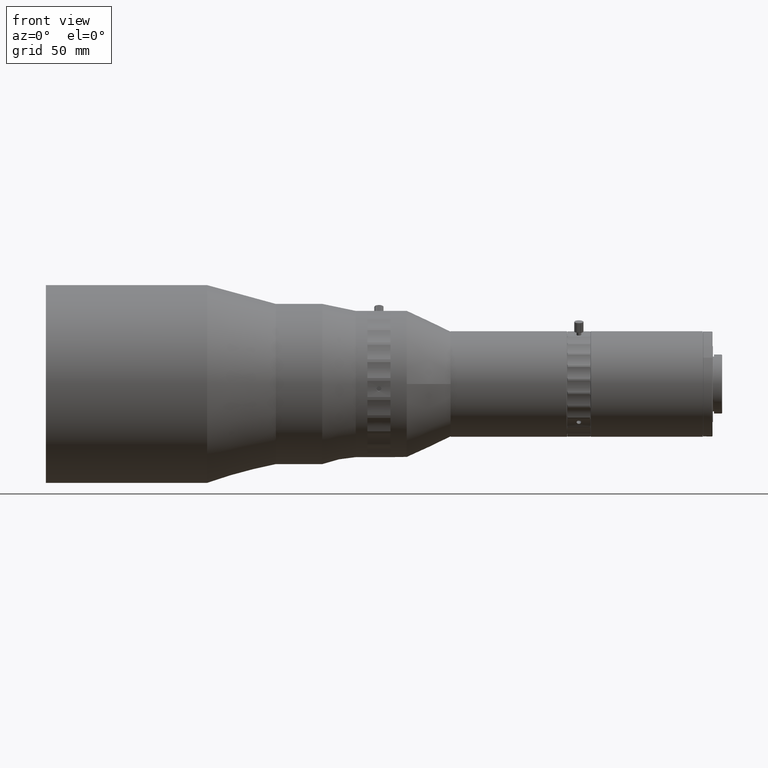
[diagram: clean part render]
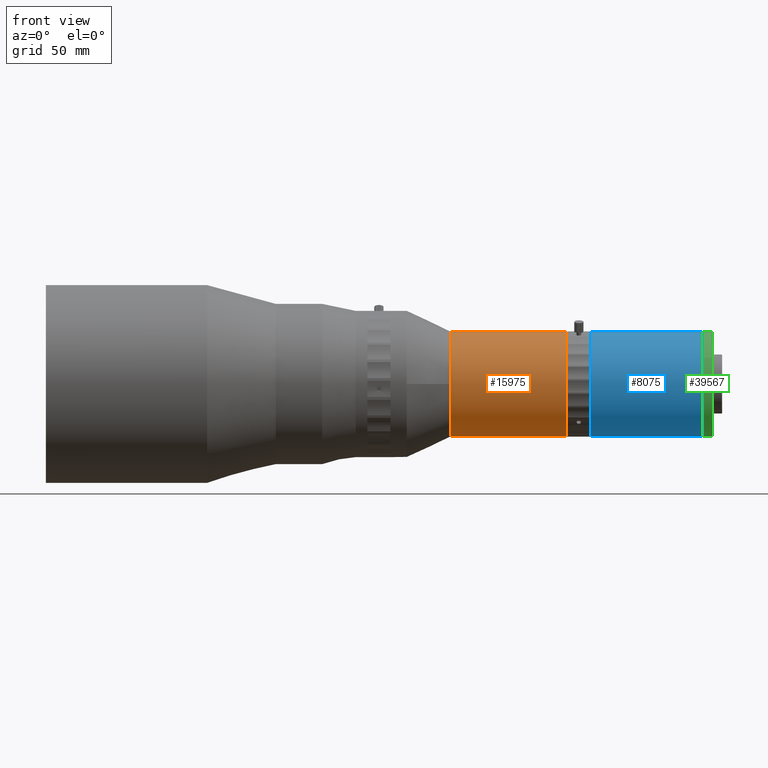
[diagram: same view with three faces highlighted in distinct colors, each labeled with its STEP entity id]
A machine part, front view with three faces highlighted in distinct colors.
Their STEP definitions:

[orange] entity #15975 — the highlighted cylindrical surface (bore or boss wall) has radius 22.7 mm, axis along (1, -0, -0).
#1626 = DIRECTION ( 'NONE',  ( 1.000000000000000000, -0.000000000000000000, -0.000000000000000000 ) ) ;
#7675 = DIRECTION ( 'NONE',  ( -1.000000000000000000, 0.000000000000000000, 0.000000000000000000 ) ) ;
#7805 = CARTESIAN_POINT ( 'NONE',  ( 90.76267934747565391, 10.19269740323192686, 154.4499999608852647 ) ) ;
#12527 = DIRECTION ( 'NONE',  ( 0.000000000000000000, 0.000000000000000000, -1.000000000000000000 ) ) ;
#15223 = FACE_OUTER_BOUND ( 'NONE', #33981, .T. ) ;
#15975 = ADVANCED_FACE ( 'NONE', ( #15223, #18558 ), #31319, .T. ) ;
#17483 = CARTESIAN_POINT ( 'NONE',  ( 90.76267934747565391, 10.19269740323192686, 131.7499999608859866 ) ) ;
#18558 = FACE_OUTER_BOUND ( 'NONE', #42216, .T. ) ;
#20070 = CIRCLE ( 'NONE', #51994, 22.69999999999927809 ) ;
#21522 = CARTESIAN_POINT ( 'NONE',  ( 140.7366800113790077, 10.19269740323192686, 131.7499999608859866 ) ) ;
#22474 = VERTEX_POINT ( 'NONE', #17483 ) ;
#25417 = EDGE_CURVE ( 'NONE', #22474, #22474, #39697, .T. ) ;
#28245 = DIRECTION ( 'NONE',  ( 0.000000000000000000, 0.000000000000000000, -1.000000000000000000 ) ) ;
#31319 = CYLINDRICAL_SURFACE ( 'NONE', #45228, 22.69999999999927809 ) ;
#33981 = EDGE_LOOP ( 'NONE', ( #46199 ) ) ;
#35490 = CARTESIAN_POINT ( 'NONE',  ( 146.6613389337572642, 10.19269740323192686, 154.4499999608852647 ) ) ;
#38719 = VERTEX_POINT ( 'NONE', #21522 ) ;
#39697 = CIRCLE ( 'NONE', #45012, 22.69999999999927809 ) ;
#40997 = CARTESIAN_POINT ( 'NONE',  ( 140.7366800113790077, 10.19269740323192686, 154.4499999608852647 ) ) ;
#42216 = EDGE_LOOP ( 'NONE', ( #51174 ) ) ;
#45012 = AXIS2_PLACEMENT_3D ( 'NONE', #7805, #50290, #12527 ) ;
#45228 = AXIS2_PLACEMENT_3D ( 'NONE', #35490, #1626, #48257 ) ;
#46043 = EDGE_CURVE ( 'NONE', #38719, #38719, #20070, .T. ) ;
#46199 = ORIENTED_EDGE ( 'NONE', *, *, #46043, .T. ) ;
#48257 = DIRECTION ( 'NONE',  ( 0.000000000000000000, 0.000000000000000000, -1.000000000000000000 ) ) ;
#50290 = DIRECTION ( 'NONE',  ( 1.000000000000000000, -0.000000000000000000, -0.000000000000000000 ) ) ;
#51174 = ORIENTED_EDGE ( 'NONE', *, *, #25417, .T. ) ;
#51994 = AXIS2_PLACEMENT_3D ( 'NONE', #40997, #7675, #28245 ) ;

[blue] entity #8075 — the highlighted cylindrical surface (bore or boss wall) has radius 22.7 mm, axis along (-1, -0, 0).
#733 = DIRECTION ( 'NONE',  ( -1.000000000000000000, -0.000000000000000000, 2.449293598294723178E-16 ) ) ;
#5657 = AXIS2_PLACEMENT_3D ( 'NONE', #46551, #733, #25474 ) ;
#6825 = AXIS2_PLACEMENT_3D ( 'NONE', #13184, #38164, #12362 ) ;
#8075 = ADVANCED_FACE ( 'NONE', ( #50716, #29617 ), #17398, .T. ) ;
#12362 = DIRECTION ( 'NONE',  ( 0.000000000000000000, 0.000000000000000000, 1.000000000000000000 ) ) ;
#13184 = CARTESIAN_POINT ( 'NONE',  ( 151.1866800113776321, 10.19269740323192686, 154.4499999608852931 ) ) ;
#15817 = EDGE_LOOP ( 'NONE', ( #53788 ) ) ;
#17398 = CYLINDRICAL_SURFACE ( 'NONE', #5657, 22.70000000000060680 ) ;
#18042 = DIRECTION ( 'NONE',  ( 0.000000000000000000, 0.000000000000000000, 1.000000000000000000 ) ) ;
#21411 = CARTESIAN_POINT ( 'NONE',  ( 199.2866793474765075, 10.19269740323192686, 154.4499999608852931 ) ) ;
#25148 = CARTESIAN_POINT ( 'NONE',  ( 151.1866800113776321, 10.19269740323192686, 177.1499999608859071 ) ) ;
#25474 = DIRECTION ( 'NONE',  ( 0.000000000000000000, 0.000000000000000000, 1.000000000000000000 ) ) ;
#28902 = AXIS2_PLACEMENT_3D ( 'NONE', #21411, #42509, #18042 ) ;
#29617 = FACE_OUTER_BOUND ( 'NONE', #48814, .T. ) ;
#29855 = CARTESIAN_POINT ( 'NONE',  ( 199.2866793474765075, 10.19269740323192686, 177.1499999608859071 ) ) ;
#36066 = CIRCLE ( 'NONE', #6825, 22.70000000000060680 ) ;
#38164 = DIRECTION ( 'NONE',  ( 1.000000000000000000, 0.000000000000000000, -2.449293598294723178E-16 ) ) ;
#42509 = DIRECTION ( 'NONE',  ( -1.000000000000000000, -0.000000000000000000, 2.449293598294723178E-16 ) ) ;
#43714 = ORIENTED_EDGE ( 'NONE', *, *, #50230, .T. ) ;
#45102 = EDGE_CURVE ( 'NONE', #51492, #51492, #47535, .T. ) ;
#46551 = CARTESIAN_POINT ( 'NONE',  ( 173.5953070704980234, 10.19269740323192686, 154.4499999608852931 ) ) ;
#47535 = CIRCLE ( 'NONE', #28902, 22.70000000000060680 ) ;
#48814 = EDGE_LOOP ( 'NONE', ( #43714 ) ) ;
#50230 = EDGE_CURVE ( 'NONE', #54835, #54835, #36066, .T. ) ;
#50716 = FACE_OUTER_BOUND ( 'NONE', #15817, .T. ) ;
#51492 = VERTEX_POINT ( 'NONE', #29855 ) ;
#53788 = ORIENTED_EDGE ( 'NONE', *, *, #45102, .T. ) ;
#54835 = VERTEX_POINT ( 'NONE', #25148 ) ;

[green] entity #39567 — the highlighted cylindrical surface (bore or boss wall) has radius 22.7 mm, axis along (-1, 0, -0).
#2201 = EDGE_CURVE ( 'NONE', #5327, #5327, #33118, .T. ) ;
#5327 = VERTEX_POINT ( 'NONE', #26709 ) ;
#6680 = CIRCLE ( 'NONE', #21743, 22.69999999999966533 ) ;
#11332 = EDGE_CURVE ( 'NONE', #49723, #49723, #6680, .T. ) ;
#11485 = FACE_OUTER_BOUND ( 'NONE', #38800, .T. ) ;
#13673 = AXIS2_PLACEMENT_3D ( 'NONE', #36470, #44530, #53127 ) ;
#17803 = DIRECTION ( 'NONE',  ( 1.000000000000000000, 1.654531496406582777E-17, -9.552442048330660002E-18 ) ) ;
#21743 = AXIS2_PLACEMENT_3D ( 'NONE', #38895, #17803, #47513 ) ;
#25519 = DIRECTION ( 'NONE',  ( 0.000000000000000000, 0.5000000000000046629, 0.8660254037844360431 ) ) ;
#26709 = CARTESIAN_POINT ( 'NONE',  ( 199.4866793474762972, 21.54269740323186255, 174.1087766267916663 ) ) ;
#28685 = CYLINDRICAL_SURFACE ( 'NONE', #13673, 22.69999999999965823 ) ;
#33118 = CIRCLE ( 'NONE', #39281, 22.69999999999965823 ) ;
#34966 = ORIENTED_EDGE ( 'NONE', *, *, #2201, .F. ) ;
#36470 = CARTESIAN_POINT ( 'NONE',  ( 195.9163071109018404, 10.19269740323193041, 154.4499999608852647 ) ) ;
#38800 = EDGE_LOOP ( 'NONE', ( #34966 ) ) ;
#38895 = CARTESIAN_POINT ( 'NONE',  ( 203.3366793474775420, 10.19269740323193041, 154.4499999608852647 ) ) ;
#39281 = AXIS2_PLACEMENT_3D ( 'NONE', #45775, #54372, #25519 ) ;
#39567 = ADVANCED_FACE ( 'NONE', ( #11485, #40641 ), #28685, .T. ) ;
#40483 = EDGE_LOOP ( 'NONE', ( #41333 ) ) ;
#40641 = FACE_OUTER_BOUND ( 'NONE', #40483, .T. ) ;
#41333 = ORIENTED_EDGE ( 'NONE', *, *, #11332, .F. ) ;
#41386 = CARTESIAN_POINT ( 'NONE',  ( 203.3366793474775420, -9.466079262674488959, 165.7999999608851738 ) ) ;
#44530 = DIRECTION ( 'NONE',  ( -1.000000000000000000, 0.000000000000000000, -0.000000000000000000 ) ) ;
#45775 = CARTESIAN_POINT ( 'NONE',  ( 199.4866793474762972, 10.19269740323193041, 154.4499999608852647 ) ) ;
#47513 = DIRECTION ( 'NONE',  ( 0.000000000000000000, -0.8660254037844364872, 0.5000000000000036637 ) ) ;
#49723 = VERTEX_POINT ( 'NONE', #41386 ) ;
#53127 = DIRECTION ( 'NONE',  ( 0.000000000000000000, -0.5000000000000045519, -0.8660254037844360431 ) ) ;
#54372 = DIRECTION ( 'NONE',  ( -1.000000000000000000, -0.000000000000000000, -0.000000000000000000 ) ) ;